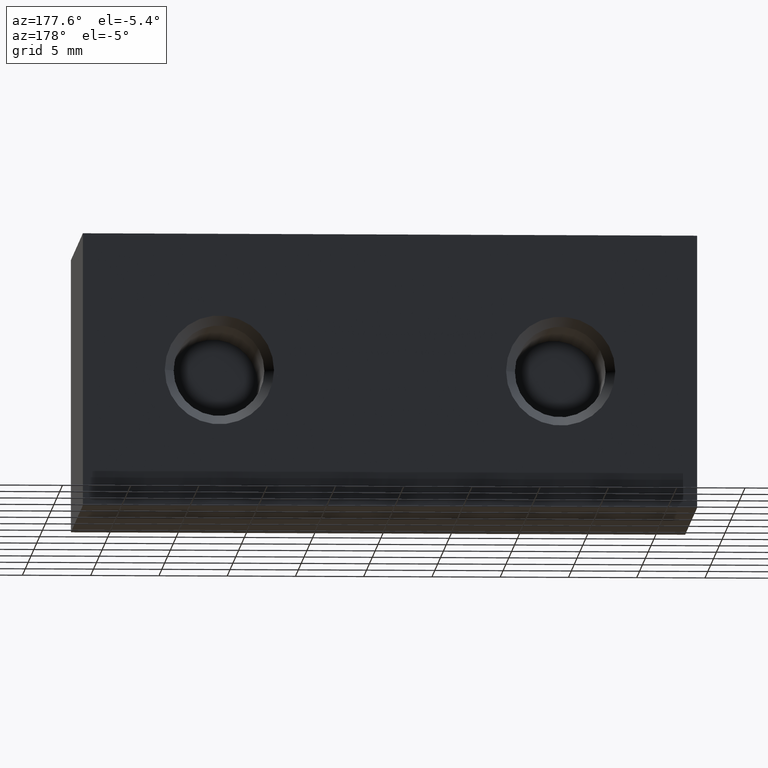
[diagram: clean part render]
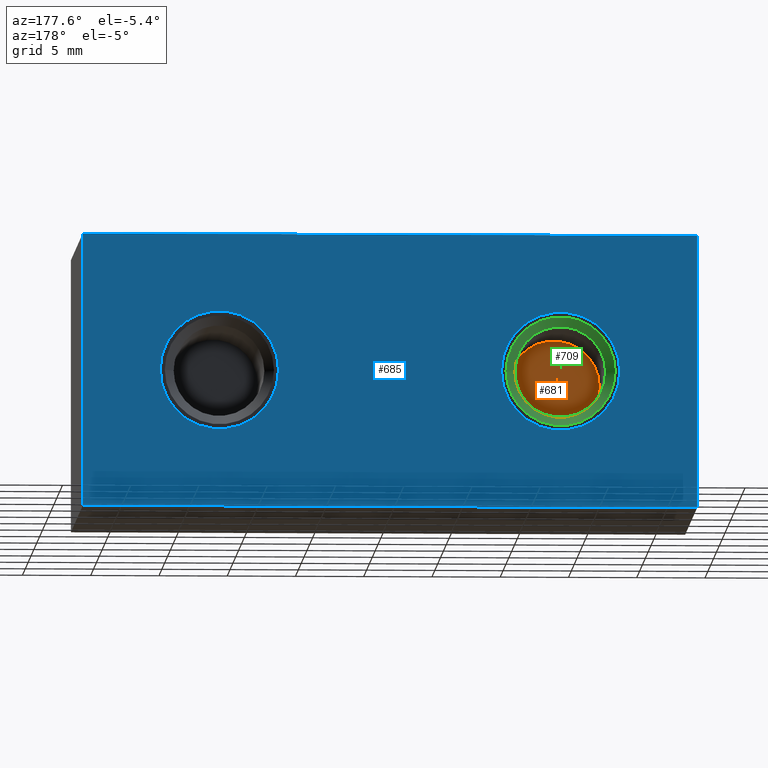
[diagram: same view with three faces highlighted in distinct colors, each labeled with its STEP entity id]
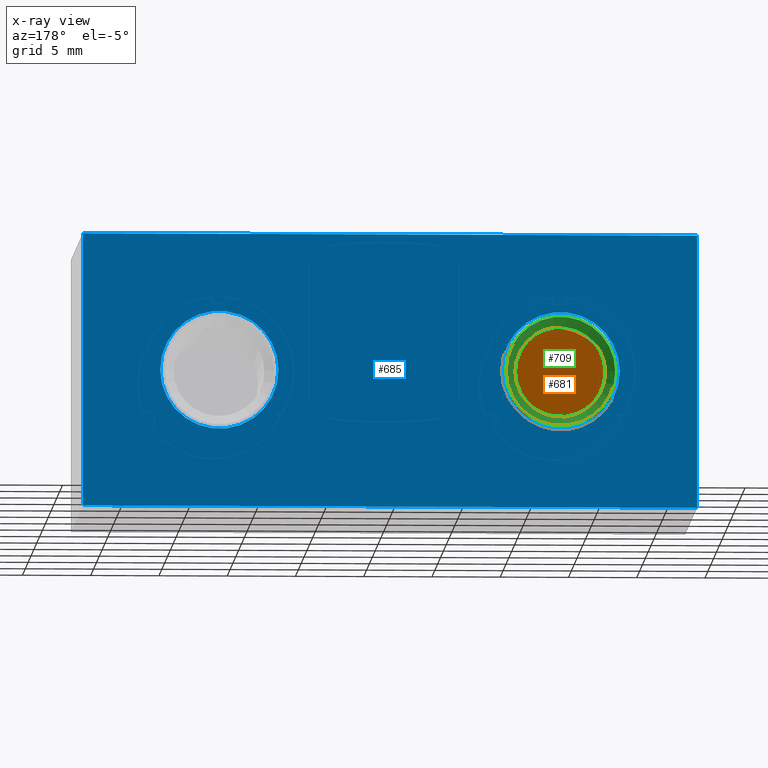
[diagram: x-ray of the same camera — body ghosted, the three highlighted faces saturated]
A machine part, auxiliary view with three faces highlighted in distinct colors.
The next image is the same camera in x-ray (body ghosted, the three faces saturated) — at least one of them is partly hidden behind the body in this view.
Their STEP definitions:

[orange] entity #681 — the highlighted planar face has unit normal (0, 1, 0).
#58=PLANE('',#793);
#87=FACE_OUTER_BOUND('',#124,.T.);
#124=EDGE_LOOP('',(#491,#492));
#271=CIRCLE('',#791,4.33);
#272=CIRCLE('',#792,4.33);
#309=VERTEX_POINT('',#1099);
#310=VERTEX_POINT('',#1101);
#382=EDGE_CURVE('',#310,#309,#271,.T.);
#383=EDGE_CURVE('',#309,#310,#272,.T.);
#491=ORIENTED_EDGE('',*,*,#382,.T.);
#492=ORIENTED_EDGE('',*,*,#383,.T.);
#681=ADVANCED_FACE('',(#87),#58,.T.);
#791=AXIS2_PLACEMENT_3D('',#1102,#893,#894);
#792=AXIS2_PLACEMENT_3D('',#1103,#895,#896);
#793=AXIS2_PLACEMENT_3D('',#1104,#897,#898);
#893=DIRECTION('center_axis',(0.,1.,0.));
#894=DIRECTION('ref_axis',(1.,0.,0.));
#895=DIRECTION('center_axis',(0.,1.,0.));
#896=DIRECTION('ref_axis',(1.,0.,0.));
#897=DIRECTION('center_axis',(0.,1.,0.));
#898=DIRECTION('ref_axis',(1.,0.,0.));
#1099=CARTESIAN_POINT('',(-16.83,8.6,-1.69017398521951E-15));
#1101=CARTESIAN_POINT('',(-8.17,8.6,-2.22044604925031E-15));
#1102=CARTESIAN_POINT('Origin',(-12.5,8.6,-2.22044604925031E-15));
#1103=CARTESIAN_POINT('Origin',(-12.5,8.6,-2.22044604925031E-15));
#1104=CARTESIAN_POINT('Origin',(-12.5,8.6,-2.22044604925031E-15));

[blue] entity #685 — the highlighted planar face has unit normal (0, 1, 0).
#52=FACE_BOUND('',#130,.T.);
#53=FACE_BOUND('',#131,.T.);
#62=PLANE('',#797);
#91=FACE_OUTER_BOUND('',#129,.T.);
#129=EDGE_LOOP('',(#507,#508,#509,#510));
#130=EDGE_LOOP('',(#511,#512));
#131=EDGE_LOOP('',(#513,#514));
#167=LINE('',#1113,#217);
#172=LINE('',#1123,#222);
#173=LINE('',#1126,#223);
#174=LINE('',#1127,#224);
#217=VECTOR('',#904,10.);
#222=VECTOR('',#913,10.);
#223=VECTOR('',#916,10.);
#224=VECTOR('',#917,10.);
#265=CIRCLE('',#783,4.33);
#266=CIRCLE('',#784,4.33);
#269=CIRCLE('',#789,4.33);
#270=CIRCLE('',#790,4.33);
#303=VERTEX_POINT('',#1084);
#304=VERTEX_POINT('',#1085);
#307=VERTEX_POINT('',#1095);
#308=VERTEX_POINT('',#1096);
#311=VERTEX_POINT('',#1106);
#314=VERTEX_POINT('',#1111);
#317=VERTEX_POINT('',#1121);
#318=VERTEX_POINT('',#1125);
#374=EDGE_CURVE('',#303,#304,#265,.T.);
#375=EDGE_CURVE('',#304,#303,#266,.T.);
#379=EDGE_CURVE('',#307,#308,#269,.T.);
#380=EDGE_CURVE('',#308,#307,#270,.T.);
#387=EDGE_CURVE('',#314,#311,#167,.T.);
#392=EDGE_CURVE('',#314,#317,#172,.T.);
#393=EDGE_CURVE('',#318,#317,#173,.T.);
#394=EDGE_CURVE('',#311,#318,#174,.T.);
#507=ORIENTED_EDGE('',*,*,#392,.T.);
#508=ORIENTED_EDGE('',*,*,#393,.F.);
#509=ORIENTED_EDGE('',*,*,#394,.F.);
#510=ORIENTED_EDGE('',*,*,#387,.F.);
#511=ORIENTED_EDGE('',*,*,#374,.T.);
#512=ORIENTED_EDGE('',*,*,#375,.T.);
#513=ORIENTED_EDGE('',*,*,#379,.T.);
#514=ORIENTED_EDGE('',*,*,#380,.T.);
#685=ADVANCED_FACE('',(#91,#52,#53),#62,.T.);
#783=AXIS2_PLACEMENT_3D('',#1086,#875,#876);
#784=AXIS2_PLACEMENT_3D('',#1087,#877,#878);
#789=AXIS2_PLACEMENT_3D('',#1097,#888,#889);
#790=AXIS2_PLACEMENT_3D('',#1098,#890,#891);
#797=AXIS2_PLACEMENT_3D('',#1124,#914,#915);
#875=DIRECTION('center_axis',(0.,-1.,0.));
#876=DIRECTION('ref_axis',(1.,0.,0.));
#877=DIRECTION('center_axis',(0.,-1.,0.));
#878=DIRECTION('ref_axis',(1.,0.,0.));
#888=DIRECTION('center_axis',(0.,-1.,0.));
#889=DIRECTION('ref_axis',(1.,0.,0.));
#890=DIRECTION('center_axis',(0.,-1.,0.));
#891=DIRECTION('ref_axis',(1.,0.,0.));
#904=DIRECTION('',(0.,0.,-1.));
#913=DIRECTION('',(1.,0.,0.));
#914=DIRECTION('center_axis',(0.,1.,0.));
#915=DIRECTION('ref_axis',(0.,0.,1.));
#916=DIRECTION('',(0.,0.,1.));
#917=DIRECTION('',(1.,0.,0.));
#1084=CARTESIAN_POINT('',(16.83,21.,-2.22044604925031E-15));
#1085=CARTESIAN_POINT('',(8.17,21.,-1.69017398521951E-15));
#1086=CARTESIAN_POINT('Origin',(12.5,21.,-2.22044604925031E-15));
#1087=CARTESIAN_POINT('Origin',(12.5,21.,-2.22044604925031E-15));
#1095=CARTESIAN_POINT('',(-8.17,21.,-2.22044604925031E-15));
#1096=CARTESIAN_POINT('',(-16.83,21.,-1.69017398521951E-15));
#1097=CARTESIAN_POINT('Origin',(-12.5,21.,-2.22044604925031E-15));
#1098=CARTESIAN_POINT('Origin',(-12.5,21.,-2.22044604925031E-15));
#1106=CARTESIAN_POINT('',(-22.5,21.,-10.));
#1111=CARTESIAN_POINT('',(-22.5,21.,10.));
#1113=CARTESIAN_POINT('',(-22.5,21.,-10.));
#1121=CARTESIAN_POINT('',(22.5,21.,10.));
#1123=CARTESIAN_POINT('',(0.,21.,10.));
#1124=CARTESIAN_POINT('Origin',(0.,21.,-10.));
#1125=CARTESIAN_POINT('',(22.5,21.,-10.));
#1126=CARTESIAN_POINT('',(22.5,21.,-10.));
#1127=CARTESIAN_POINT('',(0.,21.,-10.));

[green] entity #709 — the highlighted conical surface has half-angle 45 deg.
#29=CONICAL_SURFACE('',#844,3.66175,0.785398163397447);
#115=FACE_OUTER_BOUND('',#155,.T.);
#155=EDGE_LOOP('',(#638,#639,#640,#641,#642,#643));
#209=LINE('',#1292,#259);
#259=VECTOR('',#1046,3.66175);
#293=CIRCLE('',#842,3.3235);
#294=CIRCLE('',#843,3.3235);
#295=CIRCLE('',#845,4.);
#296=CIRCLE('',#846,4.);
#363=VERTEX_POINT('',#1285);
#364=VERTEX_POINT('',#1287);
#365=VERTEX_POINT('',#1291);
#366=VERTEX_POINT('',#1293);
#461=EDGE_CURVE('',#363,#364,#293,.T.);
#462=EDGE_CURVE('',#364,#363,#294,.T.);
#463=EDGE_CURVE('',#363,#365,#209,.T.);
#464=EDGE_CURVE('',#366,#365,#295,.T.);
#465=EDGE_CURVE('',#365,#366,#296,.T.);
#638=ORIENTED_EDGE('',*,*,#462,.F.);
#639=ORIENTED_EDGE('',*,*,#461,.F.);
#640=ORIENTED_EDGE('',*,*,#463,.T.);
#641=ORIENTED_EDGE('',*,*,#464,.F.);
#642=ORIENTED_EDGE('',*,*,#465,.F.);
#643=ORIENTED_EDGE('',*,*,#463,.F.);
#709=ADVANCED_FACE('',(#115),#29,.F.);
#842=AXIS2_PLACEMENT_3D('',#1288,#1040,#1041);
#843=AXIS2_PLACEMENT_3D('',#1289,#1042,#1043);
#844=AXIS2_PLACEMENT_3D('',#1290,#1044,#1045);
#845=AXIS2_PLACEMENT_3D('',#1294,#1047,#1048);
#846=AXIS2_PLACEMENT_3D('',#1295,#1049,#1050);
#1040=DIRECTION('center_axis',(1.,0.,0.));
#1041=DIRECTION('ref_axis',(0.,0.,-1.));
#1042=DIRECTION('center_axis',(1.,0.,0.));
#1043=DIRECTION('ref_axis',(0.,0.,-1.));
#1044=DIRECTION('center_axis',(1.,0.,0.));
#1045=DIRECTION('ref_axis',(0.,1.,0.));
#1046=DIRECTION('',(0.707106781186549,-0.707106781186546,-8.65956056235492E-17));
#1047=DIRECTION('center_axis',(-1.,0.,0.));
#1048=DIRECTION('ref_axis',(0.,1.,0.));
#1049=DIRECTION('center_axis',(-1.,0.,0.));
#1050=DIRECTION('ref_axis',(0.,1.,0.));
#1285=CARTESIAN_POINT('',(11.7235,-3.3235,-4.07011363696623E-16));
#1287=CARTESIAN_POINT('',(11.7235,3.3235,0.));
#1288=CARTESIAN_POINT('Origin',(11.7235,0.,0.));
#1289=CARTESIAN_POINT('Origin',(11.7235,0.,0.));
#1290=CARTESIAN_POINT('Origin',(12.06175,0.,0.));
#1291=CARTESIAN_POINT('',(12.4,-4.,-4.89858719658941E-16));
#1292=CARTESIAN_POINT('',(12.06175,-3.66175,-4.48435041677782E-16));
#1293=CARTESIAN_POINT('',(12.4,4.,0.));
#1294=CARTESIAN_POINT('Origin',(12.4,0.,0.));
#1295=CARTESIAN_POINT('Origin',(12.4,0.,0.));